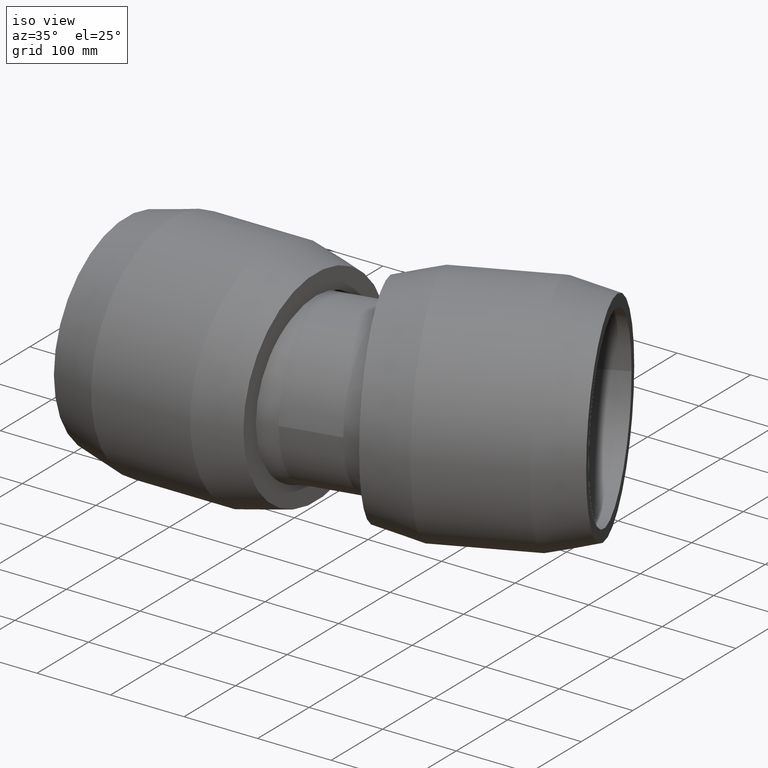
[diagram: clean part render]
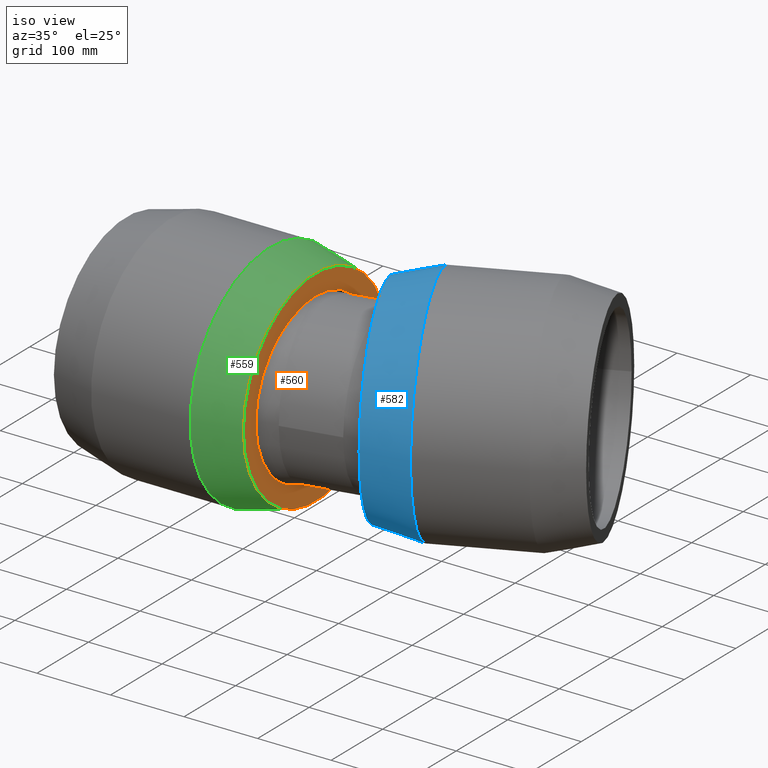
[diagram: same view with three faces highlighted in distinct colors, each labeled with its STEP entity id]
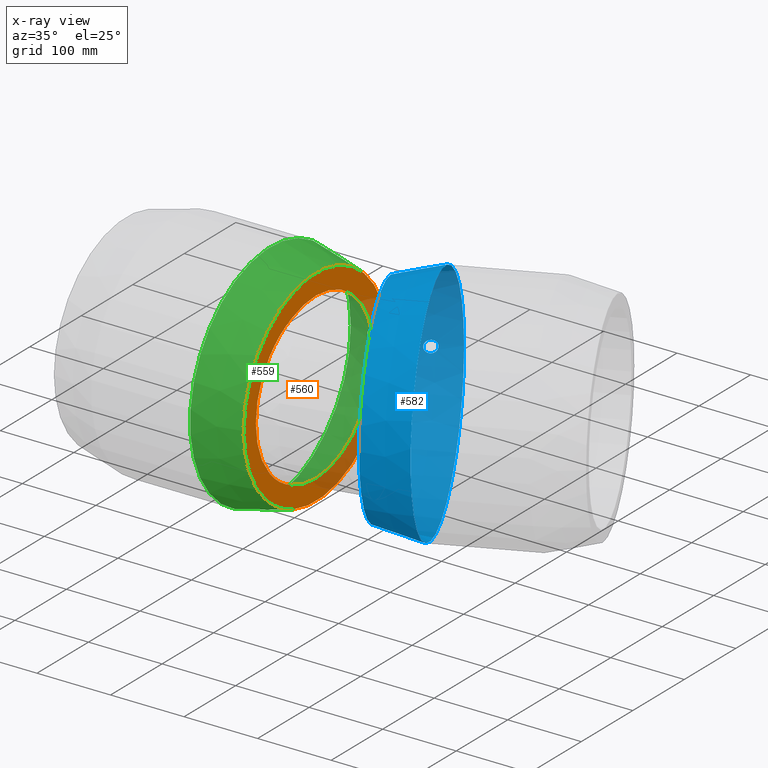
[diagram: x-ray of the same camera — body ghosted, the three highlighted faces saturated]
A machine part, iso view with three faces highlighted in distinct colors.
The next image is the same camera in x-ray (body ghosted, the three faces saturated) — at least one of them is partly hidden behind the body in this view.
Their STEP definitions:

[orange] entity #560 — the highlighted planar face has unit normal (1, 0, 0).
#31=PLANE('',#633);
#81=FACE_BOUND('',#201,.T.);
#132=FACE_OUTER_BOUND('',#200,.T.);
#200=EDGE_LOOP('',(#472));
#201=EDGE_LOOP('',(#473,#474));
#275=CIRCLE('',#599,110.156719827347);
#277=CIRCLE('',#604,112.5);
#291=CIRCLE('',#632,140.4);
#324=VERTEX_POINT('',#1006);
#325=VERTEX_POINT('',#1059);
#342=VERTEX_POINT('',#1229);
#378=EDGE_CURVE('',#325,#324,#275,.T.);
#381=EDGE_CURVE('',#325,#324,#277,.T.);
#397=EDGE_CURVE('',#342,#342,#291,.T.);
#472=ORIENTED_EDGE('',*,*,#397,.T.);
#473=ORIENTED_EDGE('',*,*,#378,.T.);
#474=ORIENTED_EDGE('',*,*,#381,.F.);
#560=ADVANCED_FACE('',(#132,#81),#31,.T.);
#599=AXIS2_PLACEMENT_3D('',#1060,#705,#706);
#604=AXIS2_PLACEMENT_3D('',#1118,#715,#716);
#632=AXIS2_PLACEMENT_3D('',#1230,#771,#772);
#633=AXIS2_PLACEMENT_3D('',#1231,#773,#774);
#705=DIRECTION('center_axis',(-1.,-1.83697019872103E-16,0.));
#706=DIRECTION('ref_axis',(0.,0.,1.));
#715=DIRECTION('center_axis',(1.,1.83697019872103E-16,0.));
#716=DIRECTION('ref_axis',(0.,0.,-1.));
#771=DIRECTION('center_axis',(1.,1.83697019872103E-16,0.));
#772=DIRECTION('ref_axis',(0.,0.,-1.));
#773=DIRECTION('center_axis',(1.,1.83697019872103E-16,0.));
#774=DIRECTION('ref_axis',(0.,0.,-1.));
#1006=CARTESIAN_POINT('',(128.8,-46.9831790279604,102.219523029735));
#1059=CARTESIAN_POINT('',(128.8,-46.9831790279604,-102.219523029735));
#1060=CARTESIAN_POINT('Origin',(128.8,-5.92624252882432,0.));
#1118=CARTESIAN_POINT('Origin',(128.8,4.73203523190537E-14,0.));
#1229=CARTESIAN_POINT('',(128.8,140.4,0.));
#1230=CARTESIAN_POINT('Origin',(128.8,4.73203523190537E-14,0.));
#1231=CARTESIAN_POINT('Origin',(128.8,112.5,0.));

[blue] entity #582 — the highlighted conical surface has half-angle 14.233 deg.
#22=CONICAL_SURFACE('',#675,148.2,14.2333611977247);
#102=FACE_BOUND('',#244,.T.);
#103=FACE_BOUND('',#245,.T.);
#154=FACE_OUTER_BOUND('',#243,.T.);
#243=EDGE_LOOP('',(#518));
#244=EDGE_LOOP('',(#519));
#245=EDGE_LOOP('',(#520));
#269=B_SPLINE_CURVE_WITH_KNOTS('',3,(#1283,#1284,#1285,#1286,#1287,#1288,
#1289,#1290,#1291,#1292,#1293,#1294,#1295,#1296,#1297,#1298,#1299,#1300,
#1301,#1302,#1303,#1304,#1305,#1306,#1307,#1308,#1309,#1310,#1311,#1312,
#1313,#1314,#1315,#1316),.UNSPECIFIED.,.T.,.F.,(4,2,2,2,2,2,2,2,2,2,2,2,
2,2,2,2,4),(0.,0.316797496741356,0.633594993482712,0.944618253262421,1.25564151304213,
1.56666477282184,1.87768803260155,2.1944855293429,2.51128302608426,2.83870576624202,
3.16612850639978,3.48263606049424,3.7991436145887,4.11565116868316,4.43215872277762,
4.75958146293538,5.08700420309314),.UNSPECIFIED.);
#310=CIRCLE('',#673,156.);
#312=CIRCLE('',#676,140.4);
#359=VERTEX_POINT('',#1282);
#362=VERTEX_POINT('',#1358);
#364=VERTEX_POINT('',#1363);
#415=EDGE_CURVE('',#359,#359,#269,.T.);
#418=EDGE_CURVE('',#362,#362,#310,.T.);
#420=EDGE_CURVE('',#364,#364,#312,.T.);
#518=ORIENTED_EDGE('',*,*,#420,.T.);
#519=ORIENTED_EDGE('',*,*,#415,.T.);
#520=ORIENTED_EDGE('',*,*,#418,.F.);
#582=ADVANCED_FACE('',(#154,#102,#103),#22,.T.);
#673=AXIS2_PLACEMENT_3D('',#1359,#853,#854);
#675=AXIS2_PLACEMENT_3D('',#1362,#857,#858);
#676=AXIS2_PLACEMENT_3D('',#1364,#859,#860);
#853=DIRECTION('center_axis',(0.913545457642601,0.406736643075799,1.19788532833232E-16));
#854=DIRECTION('ref_axis',(1.19788532833232E-16,2.54618386665283E-17,-1.));
#857=DIRECTION('center_axis',(0.913545457642601,0.406736643075799,1.19788532833232E-16));
#858=DIRECTION('ref_axis',(-0.406736643075799,0.913545457642601,-2.54618386665283E-17));
#859=DIRECTION('center_axis',(0.913545457642601,0.406736643075799,1.19788532833232E-16));
#860=DIRECTION('ref_axis',(1.19788532833232E-16,2.54618386665283E-17,-1.));
#1282=CARTESIAN_POINT('',(172.310960199314,161.281034576801,8.31495601756076));
#1283=CARTESIAN_POINT('Ctrl Pts',(172.310960199314,161.281034576801,8.31495601756076));
#1284=CARTESIAN_POINT('Ctrl Pts',(171.481312848874,160.627897880181,8.30025545412057));
#1285=CARTESIAN_POINT('Ctrl Pts',(170.588891082699,159.940010034409,8.08296581887804));
#1286=CARTESIAN_POINT('Ctrl Pts',(168.933480220656,158.690667520719,7.22151403549734));
#1287=CARTESIAN_POINT('Ctrl Pts',(168.170926656655,158.128828231084,6.57707287458325));
#1288=CARTESIAN_POINT('Ctrl Pts',(166.972070354007,157.257105445255,5.09978268326538));
#1289=CARTESIAN_POINT('Ctrl Pts',(166.451772244155,156.885758874421,4.17337566474382));
#1290=CARTESIAN_POINT('Ctrl Pts',(165.75967910057,156.395047908448,2.14185004710762));
#1291=CARTESIAN_POINT('Ctrl Pts',(165.588233640552,156.27513790273,1.0367441992657));
#1292=CARTESIAN_POINT('Ctrl Pts',(165.588233640552,156.27513790273,-1.03674419926569));
#1293=CARTESIAN_POINT('Ctrl Pts',(165.75967910057,156.395047908448,-2.14185004710761));
#1294=CARTESIAN_POINT('Ctrl Pts',(166.451772244155,156.885758874421,-4.17337566474382));
#1295=CARTESIAN_POINT('Ctrl Pts',(166.972070354007,157.257105445255,-5.09978268326537));
#1296=CARTESIAN_POINT('Ctrl Pts',(168.170926656655,158.128828231084,-6.57707287458325));
#1297=CARTESIAN_POINT('Ctrl Pts',(168.933480220656,158.690667520719,-7.22151403549734));
#1298=CARTESIAN_POINT('Ctrl Pts',(170.588891082699,159.940010034409,-8.08296581887804));
#1299=CARTESIAN_POINT('Ctrl Pts',(171.481312848874,160.627897880181,-8.30025545412057));
#1300=CARTESIAN_POINT('Ctrl Pts',(173.168433543137,161.956077180056,-8.33014963118763));
#1301=CARTESIAN_POINT('Ctrl Pts',(174.07860066924,162.688232269465,-8.13161273974482));
#1302=CARTESIAN_POINT('Ctrl Pts',(175.748282906943,164.059044021452,-7.2877873026896));
#1303=CARTESIAN_POINT('Ctrl Pts',(176.508183897789,164.697214197373,-6.6424721054346));
#1304=CARTESIAN_POINT('Ctrl Pts',(177.688453628475,165.700283930577,-5.15653982628526));
#1305=CARTESIAN_POINT('Ctrl Pts',(178.19481774816,166.137691913428,-4.22654532561805));
#1306=CARTESIAN_POINT('Ctrl Pts',(178.868557330905,166.723011733063,-2.17589767399937));
#1307=CARTESIAN_POINT('Ctrl Pts',(179.035951623245,166.870133148982,-1.05502518031486));
#1308=CARTESIAN_POINT('Ctrl Pts',(179.035951623245,166.870133148982,1.05502518031487));
#1309=CARTESIAN_POINT('Ctrl Pts',(178.868557330905,166.723011733063,2.17589767399938));
#1310=CARTESIAN_POINT('Ctrl Pts',(178.19481774816,166.137691913428,4.22654532561805));
#1311=CARTESIAN_POINT('Ctrl Pts',(177.688453628475,165.700283930577,5.15653982628526));
#1312=CARTESIAN_POINT('Ctrl Pts',(176.508183897789,164.697214197373,6.64247210543461));
#1313=CARTESIAN_POINT('Ctrl Pts',(175.748282906943,164.059044021452,7.28778730268959));
#1314=CARTESIAN_POINT('Ctrl Pts',(174.07860066924,162.688232269465,8.13161273974483));
#1315=CARTESIAN_POINT('Ctrl Pts',(173.168433543137,161.956077180056,8.33014963118764));
#1316=CARTESIAN_POINT('Ctrl Pts',(172.310960199314,161.281034576801,8.31495601756077));
#1358=CARTESIAN_POINT('',(201.42404962119,184.50894682474,8.39620666318904E-15));
#1359=CARTESIAN_POINT('Origin',(264.874965941015,41.9958554324938,1.23682534951674E-14));
#1362=CARTESIAN_POINT('Origin',(236.783443118505,29.4887036579129,8.68475611054556E-15));
#1363=CARTESIAN_POINT('',(151.586095608152,145.243334136353,1.42641657714311E-15));
#1364=CARTESIAN_POINT('Origin',(208.691920295995,16.9815518833321,5.00125872592368E-15));

[green] entity #559 — the highlighted conical surface has half-angle 14.233 deg.
#17=CONICAL_SURFACE('',#631,148.2,14.2333611977247);
#79=FACE_BOUND('',#198,.T.);
#80=FACE_BOUND('',#199,.T.);
#131=FACE_OUTER_BOUND('',#197,.T.);
#197=EDGE_LOOP('',(#469));
#198=EDGE_LOOP('',(#470));
#199=EDGE_LOOP('',(#471));
#267=B_SPLINE_CURVE_WITH_KNOTS('',3,(#1152,#1153,#1154,#1155,#1156,#1157,
#1158,#1159,#1160,#1161,#1162,#1163,#1164,#1165,#1166,#1167,#1168,#1169,
#1170,#1171,#1172,#1173,#1174,#1175,#1176,#1177,#1178,#1179,#1180,#1181,
#1182,#1183,#1184,#1185),.UNSPECIFIED.,.T.,.F.,(4,2,2,2,2,2,2,2,2,2,2,2,
2,2,2,2,4),(0.,0.32742274015776,0.65484548031552,0.971353034409979,1.28786058850444,
1.6043681425989,1.92087569669335,2.24829843685111,2.57572117700887,2.89251867375023,
3.20931617049159,3.5203394302713,3.83136269005101,4.14238594983072,4.45340920961043,
4.77020670635178,5.08700420309314),.UNSPECIFIED.);
#289=CIRCLE('',#629,156.);
#291=CIRCLE('',#632,140.4);
#338=VERTEX_POINT('',#1151);
#340=VERTEX_POINT('',#1224);
#342=VERTEX_POINT('',#1229);
#393=EDGE_CURVE('',#338,#338,#267,.T.);
#395=EDGE_CURVE('',#340,#340,#289,.T.);
#397=EDGE_CURVE('',#342,#342,#291,.T.);
#469=ORIENTED_EDGE('',*,*,#397,.F.);
#470=ORIENTED_EDGE('',*,*,#393,.T.);
#471=ORIENTED_EDGE('',*,*,#395,.T.);
#559=ADVANCED_FACE('',(#131,#79,#80),#17,.T.);
#629=AXIS2_PLACEMENT_3D('',#1225,#765,#766);
#631=AXIS2_PLACEMENT_3D('',#1228,#769,#770);
#632=AXIS2_PLACEMENT_3D('',#1230,#771,#772);
#765=DIRECTION('center_axis',(1.,1.83697019872103E-16,0.));
#766=DIRECTION('ref_axis',(0.,0.,-1.));
#769=DIRECTION('center_axis',(-1.,-1.83697019872103E-16,0.));
#770=DIRECTION('ref_axis',(-1.81044448193185E-16,1.,0.));
#771=DIRECTION('center_axis',(1.,1.83697019872103E-16,0.));
#772=DIRECTION('ref_axis',(0.,0.,-1.));
#1151=CARTESIAN_POINT('',(103.343773652684,146.621606536394,8.31495601756075));
#1152=CARTESIAN_POINT('Ctrl Pts',(103.343773652684,146.621606536394,8.31495601756076));
#1153=CARTESIAN_POINT('Ctrl Pts',(102.285868212003,146.889522810919,8.33014963118763));
#1154=CARTESIAN_POINT('Ctrl Pts',(101.156594864979,147.188181445629,8.13161273974483));
#1155=CARTESIAN_POINT('Ctrl Pts',(99.0737048707267,147.761359346574,7.28778730268961));
#1156=CARTESIAN_POINT('Ctrl Pts',(98.1199335772166,148.035277233903,6.64247210543459));
#1157=CARTESIAN_POINT('Ctrl Pts',(96.6337183099002,148.471568084187,5.15653982628526));
#1158=CARTESIAN_POINT('Ctrl Pts',(95.9932218138503,148.665203317843,4.22654532561806));
#1159=CARTESIAN_POINT('Ctrl Pts',(95.1396590598351,148.925885004145,2.17589767399938));
#1160=CARTESIAN_POINT('Ctrl Pts',(94.9268970935974,148.992201712844,1.05502518031486));
#1161=CARTESIAN_POINT('Ctrl Pts',(94.9268970935974,148.992201712844,-1.05502518031486));
#1162=CARTESIAN_POINT('Ctrl Pts',(95.1396590598351,148.925885004145,-2.17589767399938));
#1163=CARTESIAN_POINT('Ctrl Pts',(95.9932218138503,148.665203317843,-4.22654532561806));
#1164=CARTESIAN_POINT('Ctrl Pts',(96.6337183099002,148.471568084187,-5.15653982628526));
#1165=CARTESIAN_POINT('Ctrl Pts',(98.1199335772166,148.035277233903,-6.64247210543459));
#1166=CARTESIAN_POINT('Ctrl Pts',(99.0737048707267,147.761359346574,-7.28778730268961));
#1167=CARTESIAN_POINT('Ctrl Pts',(101.156594864979,147.188181445629,-8.13161273974483));
#1168=CARTESIAN_POINT('Ctrl Pts',(102.285868212003,146.889522810919,-8.33014963118764));
#1169=CARTESIAN_POINT('Ctrl Pts',(104.367348848576,146.362384452232,-8.30025545412058));
#1170=CARTESIAN_POINT('Ctrl Pts',(105.462405892568,146.096948268741,-8.08296581887805));
#1171=CARTESIAN_POINT('Ctrl Pts',(107.48285234619,145.628933347258,-7.22151403549736));
#1172=CARTESIAN_POINT('Ctrl Pts',(108.408000317407,145.425826093075,-6.57707287458326));
#1173=CARTESIAN_POINT('Ctrl Pts',(109.857771646658,145.117086489826,-5.09978268326538));
#1174=CARTESIAN_POINT('Ctrl Pts',(110.484127879172,144.989468823429,-4.17337566474384));
#1175=CARTESIAN_POINT('Ctrl Pts',(111.31597655778,144.822681691367,-2.14185004710763));
#1176=CARTESIAN_POINT('Ctrl Pts',(111.52137157221,144.782871601196,-1.0367441992657));
#1177=CARTESIAN_POINT('Ctrl Pts',(111.52137157221,144.782871601196,1.0367441992657));
#1178=CARTESIAN_POINT('Ctrl Pts',(111.31597655778,144.822681691367,2.14185004710763));
#1179=CARTESIAN_POINT('Ctrl Pts',(110.484127879172,144.989468823429,4.17337566474383));
#1180=CARTESIAN_POINT('Ctrl Pts',(109.857771646658,145.117086489826,5.09978268326538));
#1181=CARTESIAN_POINT('Ctrl Pts',(108.408000317407,145.425826093075,6.57707287458325));
#1182=CARTESIAN_POINT('Ctrl Pts',(107.48285234619,145.628933347258,7.22151403549735));
#1183=CARTESIAN_POINT('Ctrl Pts',(105.462405892568,146.096948268741,8.08296581887805));
#1184=CARTESIAN_POINT('Ctrl Pts',(104.367348848576,146.362384452232,8.30025545412058));
#1185=CARTESIAN_POINT('Ctrl Pts',(103.343773652684,146.621606536394,8.31495601756076));
#1224=CARTESIAN_POINT('',(67.3,156.,0.));
#1225=CARTESIAN_POINT('Origin',(67.3,3.60229855969194E-14,0.));
#1228=CARTESIAN_POINT('Origin',(98.05,4.16716689579866E-14,0.));
#1229=CARTESIAN_POINT('',(128.8,140.4,0.));
#1230=CARTESIAN_POINT('Origin',(128.8,4.73203523190537E-14,0.));